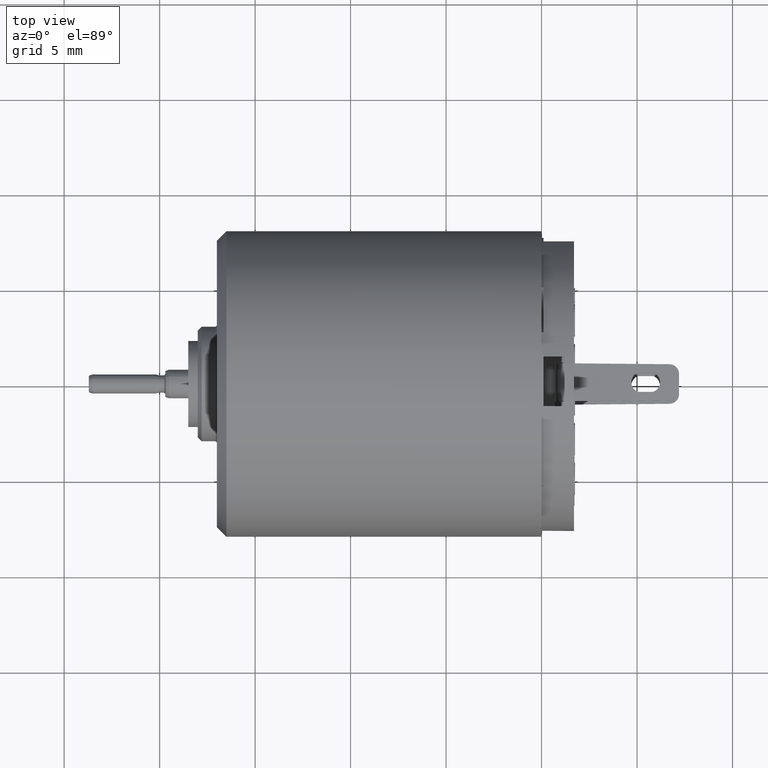
[diagram: clean part render]
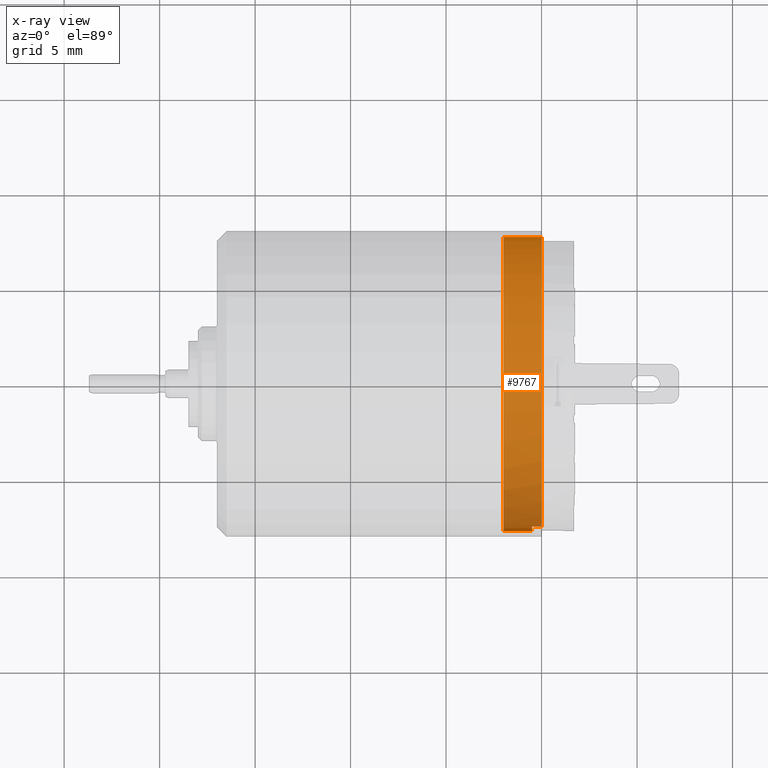
[diagram: x-ray — body ghosted, one internal face saturated and labeled with its STEP entity id]
A machine part, top view, then the same camera in x-ray: the body is ghosted and one INTERNAL B-rep face — a face not visible from any outside direction — is saturated and labeled: STEP entity #9767.
In plain terms, the highlighted cylindrical surface (partial cylindrical patch) has radius 7.7 mm, axis along (-1, 0, 0).
Its self-contained STEP definition (entity closure, byte-faithful):
#823=CARTESIAN_POINT('',(-5.E-1,1.230770033143E-14,0.E0));
#824=DIRECTION('',(1.E0,0.E0,0.E0));
#825=DIRECTION('',(0.E0,-1.E0,-2.898826332017E-14));
#826=AXIS2_PLACEMENT_3D('',#823,#824,#825);
#845=DIRECTION('',(-1.E0,1.092459456231E-13,-3.714633062152E-14));
#846=VECTOR('',#845,2.E0);
#847=CARTESIAN_POINT('',(0.E0,7.7E0,7.523563927837E-14));
#848=LINE('',#847,#846);
#849=DIRECTION('',(1.E0,-4.215886898843E-13,-4.860036376904E-14));
#850=VECTOR('',#849,1.5E0);
#851=CARTESIAN_POINT('',(-2.E0,-7.7E0,0.E0));
#852=LINE('',#851,#850);
#1057=CARTESIAN_POINT('',(0.E0,1.224646799148E-14,0.E0));
#1058=DIRECTION('',(1.E0,0.E0,0.E0));
#1059=DIRECTION('',(0.E0,-9.659258262891E-1,-2.588190451025E-1));
#1060=AXIS2_PLACEMENT_3D('',#1057,#1058,#1059);
#1751=CARTESIAN_POINT('',(-2.E0,0.E0,0.E0));
#1752=DIRECTION('',(-1.E0,0.E0,0.E0));
#1753=DIRECTION('',(0.E0,1.E0,0.E0));
#1754=AXIS2_PLACEMENT_3D('',#1751,#1752,#1753);
#1890=DIRECTION('',(1.E0,6.465938895417E-13,-1.909583602355E-14));
#1891=VECTOR('',#1890,5.E-1);
#1892=CARTESIAN_POINT('',(-5.E-1,-7.437628862426E0,-1.992906647289E0));
#1893=LINE('',#1892,#1891);
#6746=CARTESIAN_POINT('',(0.E0,-7.437628862426E0,-1.992906647289E0));
#6747=CARTESIAN_POINT('',(0.E0,7.7E0,2.253752739989E-13));
#6748=VERTEX_POINT('',#6746);
#6749=VERTEX_POINT('',#6747);
#6919=CARTESIAN_POINT('',(-5.E-1,-7.700000000003E0,-2.232096275654E-13));
#6920=CARTESIAN_POINT('',(-5.E-1,-7.437628862428E0,-1.992906647290E0));
#6921=VERTEX_POINT('',#6919);
#6922=VERTEX_POINT('',#6920);
#6923=CARTESIAN_POINT('',(-2.E0,-7.7E0,0.E0));
#6924=VERTEX_POINT('',#6923);
#6925=CARTESIAN_POINT('',(-2.E0,7.7E0,0.E0));
#6926=VERTEX_POINT('',#6925);
#9752=CARTESIAN_POINT('',(4.635975376023E-2,1.224079055907E-14,0.E0));
#9753=DIRECTION('',(-1.E0,0.E0,0.E0));
#9754=DIRECTION('',(0.E0,1.E0,0.E0));
#9755=AXIS2_PLACEMENT_3D('',#9752,#9753,#9754);
#9756=CYLINDRICAL_SURFACE('',#9755,7.7E0);
#9757=ORIENTED_EDGE('',*,*,#8380,.F.);
#9758=ORIENTED_EDGE('',*,*,#8415,.F.);
#9760=ORIENTED_EDGE('',*,*,#9759,.F.);
#9761=ORIENTED_EDGE('',*,*,#8411,.F.);
#9762=ORIENTED_EDGE('',*,*,#8731,.F.);
#9764=ORIENTED_EDGE('',*,*,#9763,.F.);
#9765=EDGE_LOOP('',(#9757,#9758,#9760,#9761,#9762,#9764));
#9766=FACE_OUTER_BOUND('',#9765,.F.);
#9767=ADVANCED_FACE('',(#9766),#9756,.F.);
#827=CIRCLE('',#826,7.700000000003E0);
#1061=CIRCLE('',#1060,7.7E0);
#1755=CIRCLE('',#1754,7.7E0);
#8380=EDGE_CURVE('',#6921,#6922,#827,.T.);
#8411=EDGE_CURVE('',#6749,#6926,#848,.T.);
#8415=EDGE_CURVE('',#6924,#6921,#852,.T.);
#8731=EDGE_CURVE('',#6748,#6749,#1061,.T.);
#9759=EDGE_CURVE('',#6926,#6924,#1755,.T.);
#9763=EDGE_CURVE('',#6922,#6748,#1893,.T.);